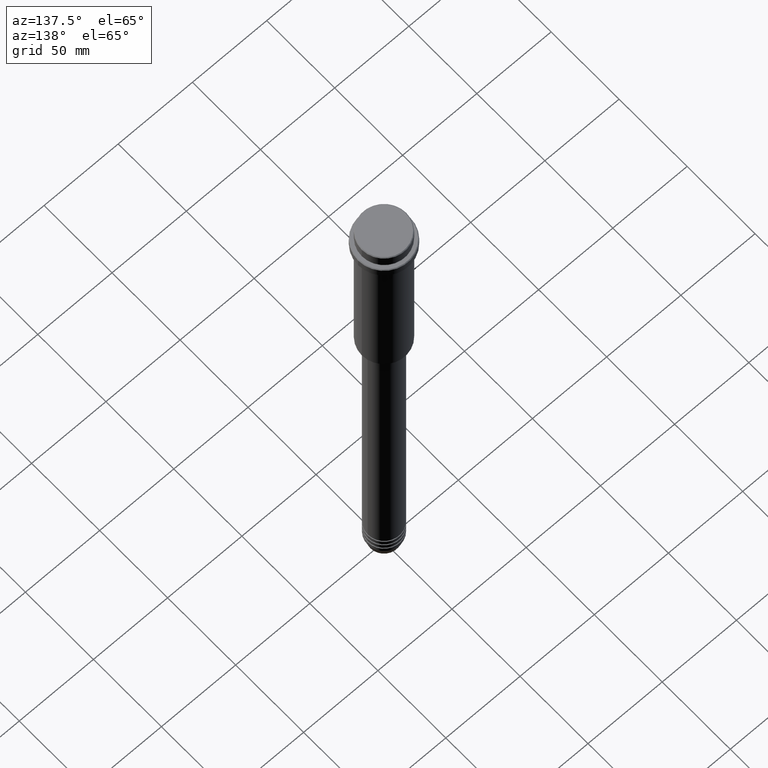
[diagram: clean part render]
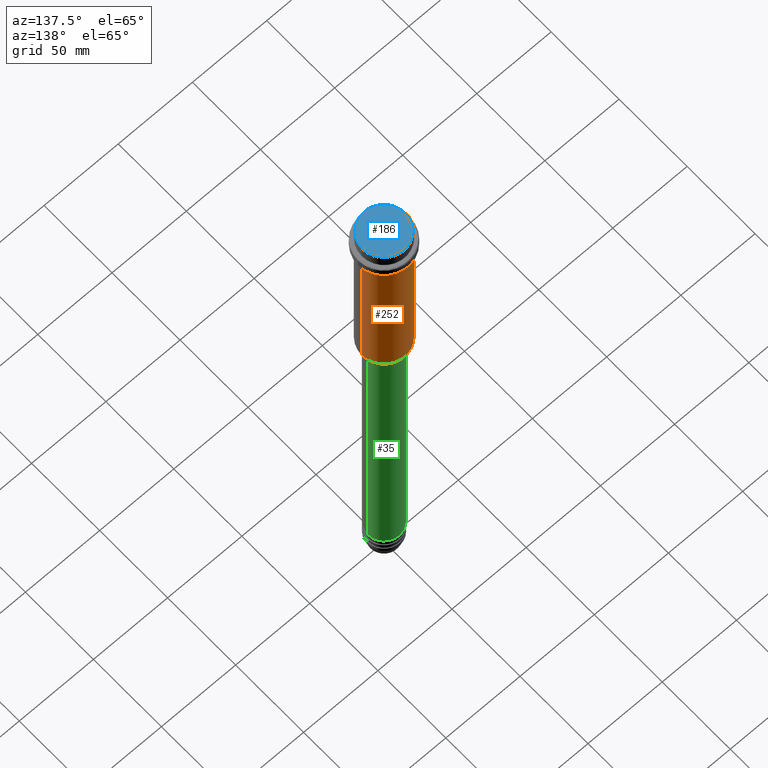
[diagram: same view with three faces highlighted in distinct colors, each labeled with its STEP entity id]
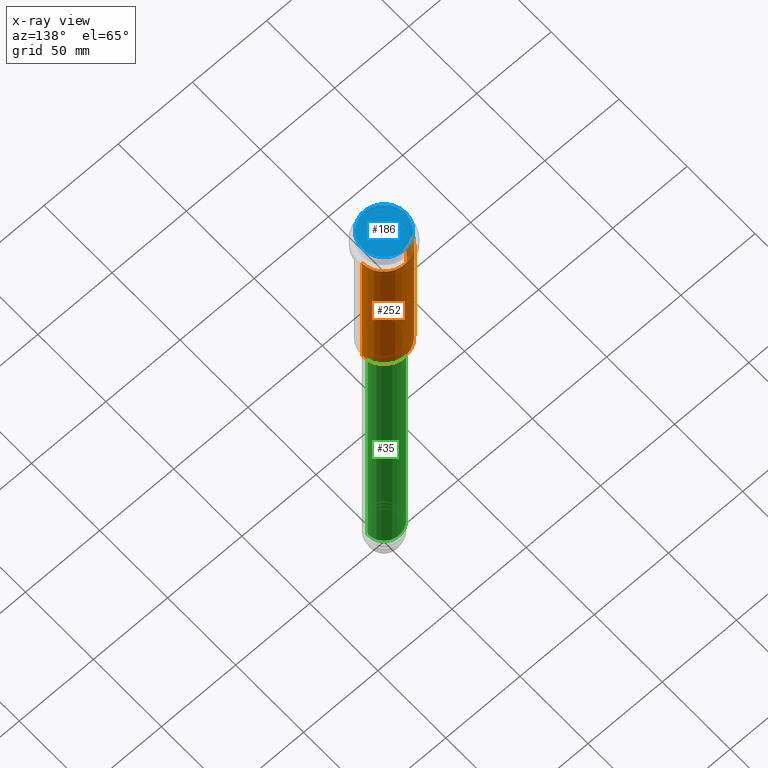
[diagram: x-ray of the same camera — body ghosted, the three highlighted faces saturated]
A machine part, auxiliary view with three faces highlighted in distinct colors.
The next image is the same camera in x-ray (body ghosted, the three faces saturated) — at least one of them is partly hidden behind the body in this view.
Their STEP definitions:

[orange] entity #252 — the highlighted cylindrical surface (edge-blend (fillet) strip) has radius 15 mm, axis along (-0, -0, 1).
#12 = AXIS2_PLACEMENT_3D ( 'NONE', #1238, #811, #824 ) ;
#33 = CARTESIAN_POINT ( 'NONE',  ( -15.00000000000000355, 1.836970198721029983E-15, -16.00000000000000000 ) ) ;
#107 = CARTESIAN_POINT ( 'NONE',  ( 15.00000000000000000, 0.000000000000000000, -124.4999999999999432 ) ) ;
#144 = CYLINDRICAL_SURFACE ( 'NONE', #772, 15.00000000000000000 ) ;
#168 = CARTESIAN_POINT ( 'NONE',  ( -15.00000000000000000, 1.836970198721029589E-15, -124.4999999999999432 ) ) ;
#205 = DIRECTION ( 'NONE',  ( -0.000000000000000000, -0.000000000000000000, 1.000000000000000000 ) ) ;
#219 = CARTESIAN_POINT ( 'NONE',  ( 0.000000000000000000, 0.000000000000000000, -124.4999999999999432 ) ) ;
#252 = ADVANCED_FACE ( 'NONE', ( #1256 ), #144, .T. ) ;
#314 = ORIENTED_EDGE ( 'NONE', *, *, #1406, .F. ) ;
#339 = VECTOR ( 'NONE', #1314, 1000.000000000000000 ) ;
#380 = AXIS2_PLACEMENT_3D ( 'NONE', #219, #205, #628 ) ;
#513 = CIRCLE ( 'NONE', #380, 15.00000000000000000 ) ;
#557 = VERTEX_POINT ( 'NONE', #168 ) ;
#588 = LINE ( 'NONE', #1039, #1097 ) ;
#626 = CIRCLE ( 'NONE', #12, 15.00000000000000178 ) ;
#628 = DIRECTION ( 'NONE',  ( -1.000000000000000000, 0.000000000000000000, 0.000000000000000000 ) ) ;
#632 = EDGE_CURVE ( 'NONE', #729, #825, #706, .T. ) ;
#706 = LINE ( 'NONE', #973, #339 ) ;
#729 = VERTEX_POINT ( 'NONE', #107 ) ;
#738 = DIRECTION ( 'NONE',  ( 1.000000000000000000, 0.000000000000000000, 0.000000000000000000 ) ) ;
#758 = ORIENTED_EDGE ( 'NONE', *, *, #979, .T. ) ;
#772 = AXIS2_PLACEMENT_3D ( 'NONE', #1170, #1266, #738 ) ;
#811 = DIRECTION ( 'NONE',  ( -0.000000000000000000, -0.000000000000000000, 1.000000000000000000 ) ) ;
#824 = DIRECTION ( 'NONE',  ( 1.000000000000000000, 0.000000000000000000, 0.000000000000000000 ) ) ;
#825 = VERTEX_POINT ( 'NONE', #889 ) ;
#860 = VERTEX_POINT ( 'NONE', #33 ) ;
#889 = CARTESIAN_POINT ( 'NONE',  ( 15.00000000000000178, 0.000000000000000000, -16.00000000000000000 ) ) ;
#973 = CARTESIAN_POINT ( 'NONE',  ( 15.00000000000000000, 0.000000000000000000, 0.000000000000000000 ) ) ;
#975 = EDGE_LOOP ( 'NONE', ( #1399, #758, #314, #994 ) ) ;
#979 = EDGE_CURVE ( 'NONE', #557, #860, #588, .T. ) ;
#994 = ORIENTED_EDGE ( 'NONE', *, *, #632, .F. ) ;
#1039 = CARTESIAN_POINT ( 'NONE',  ( -15.00000000000000000, 1.836970198721029589E-15, 0.000000000000000000 ) ) ;
#1097 = VECTOR ( 'NONE', #1248, 1000.000000000000000 ) ;
#1109 = EDGE_CURVE ( 'NONE', #729, #557, #513, .T. ) ;
#1170 = CARTESIAN_POINT ( 'NONE',  ( 0.000000000000000000, 0.000000000000000000, 0.000000000000000000 ) ) ;
#1238 = CARTESIAN_POINT ( 'NONE',  ( 0.000000000000000000, 0.000000000000000000, -16.00000000000000000 ) ) ;
#1248 = DIRECTION ( 'NONE',  ( -0.000000000000000000, -0.000000000000000000, 1.000000000000000000 ) ) ;
#1256 = FACE_OUTER_BOUND ( 'NONE', #975, .T. ) ;
#1266 = DIRECTION ( 'NONE',  ( -0.000000000000000000, -0.000000000000000000, 1.000000000000000000 ) ) ;
#1314 = DIRECTION ( 'NONE',  ( -0.000000000000000000, -0.000000000000000000, 1.000000000000000000 ) ) ;
#1399 = ORIENTED_EDGE ( 'NONE', *, *, #1109, .T. ) ;
#1406 = EDGE_CURVE ( 'NONE', #825, #860, #626, .T. ) ;

[blue] entity #186 — the highlighted planar face has unit normal (0, -0, 1).
#9 = DIRECTION ( 'NONE',  ( 1.000000000000000000, 0.000000000000000000, 0.000000000000000000 ) ) ;
#29 = CARTESIAN_POINT ( 'NONE',  ( 0.000000000000000000, 0.000000000000000000, 0.000000000000000000 ) ) ;
#51 = DIRECTION ( 'NONE',  ( 1.000000000000000000, 0.000000000000000000, 0.000000000000000000 ) ) ;
#93 = EDGE_LOOP ( 'NONE', ( #336, #224 ) ) ;
#130 = AXIS2_PLACEMENT_3D ( 'NONE', #1162, #1409, #1282 ) ;
#186 = ADVANCED_FACE ( 'NONE', ( #967 ), #734, .T. ) ;
#224 = ORIENTED_EDGE ( 'NONE', *, *, #895, .T. ) ;
#260 = AXIS2_PLACEMENT_3D ( 'NONE', #29, #1091, #9 ) ;
#330 = EDGE_CURVE ( 'NONE', #866, #1041, #578, .T. ) ;
#336 = ORIENTED_EDGE ( 'NONE', *, *, #330, .T. ) ;
#385 = CARTESIAN_POINT ( 'NONE',  ( 0.000000000000000000, 0.000000000000000000, 0.000000000000000000 ) ) ;
#457 = AXIS2_PLACEMENT_3D ( 'NONE', #385, #506, #51 ) ;
#463 = CARTESIAN_POINT ( 'NONE',  ( -14.50000000000006750, 0.000000000000000000, 0.000000000000000000 ) ) ;
#506 = DIRECTION ( 'NONE',  ( -0.000000000000000000, -0.000000000000000000, 1.000000000000000000 ) ) ;
#578 = CIRCLE ( 'NONE', #457, 14.50000000000006750 ) ;
#734 = PLANE ( 'NONE',  #130 ) ;
#866 = VERTEX_POINT ( 'NONE', #463 ) ;
#895 = EDGE_CURVE ( 'NONE', #1041, #866, #1119, .T. ) ;
#967 = FACE_OUTER_BOUND ( 'NONE', #93, .T. ) ;
#1041 = VERTEX_POINT ( 'NONE', #1380 ) ;
#1091 = DIRECTION ( 'NONE',  ( -0.000000000000000000, -0.000000000000000000, 1.000000000000000000 ) ) ;
#1119 = CIRCLE ( 'NONE', #260, 14.50000000000006750 ) ;
#1162 = CARTESIAN_POINT ( 'NONE',  ( 0.000000000000000000, 0.000000000000000000, 0.000000000000000000 ) ) ;
#1282 = DIRECTION ( 'NONE',  ( 1.000000000000000000, 0.000000000000000000, 0.000000000000000000 ) ) ;
#1380 = CARTESIAN_POINT ( 'NONE',  ( 14.50000000000006750, 1.806354028742349746E-15, 0.000000000000000000 ) ) ;
#1409 = DIRECTION ( 'NONE',  ( 0.000000000000000000, -0.000000000000000000, 1.000000000000000000 ) ) ;

[green] entity #35 — the highlighted cylindrical surface (edge-blend (fillet) strip) has radius 11 mm, axis along (-0, -0, 1).
#35 = ADVANCED_FACE ( 'NONE', ( #386 ), #154, .T. ) ;
#67 = LINE ( 'NONE', #1369, #1213 ) ;
#88 = VERTEX_POINT ( 'NONE', #1123 ) ;
#153 = LINE ( 'NONE', #1231, #360 ) ;
#154 = CYLINDRICAL_SURFACE ( 'NONE', #941, 11.00000000000000000 ) ;
#167 = DIRECTION ( 'NONE',  ( 1.000000000000000000, 0.000000000000000000, 0.000000000000000000 ) ) ;
#185 = ORIENTED_EDGE ( 'NONE', *, *, #1032, .F. ) ;
#189 = ORIENTED_EDGE ( 'NONE', *, *, #932, .F. ) ;
#191 = EDGE_LOOP ( 'NONE', ( #658, #1120, #189, #185 ) ) ;
#203 = CIRCLE ( 'NONE', #650, 11.00000000000000000 ) ;
#220 = CARTESIAN_POINT ( 'NONE',  ( 0.000000000000000000, 0.000000000000000000, 0.000000000000000000 ) ) ;
#222 = VERTEX_POINT ( 'NONE', #428 ) ;
#243 = EDGE_CURVE ( 'NONE', #1117, #1317, #153, .T. ) ;
#350 = DIRECTION ( 'NONE',  ( 1.000000000000000000, 0.000000000000000000, 0.000000000000000000 ) ) ;
#360 = VECTOR ( 'NONE', #1363, 1000.000000000000000 ) ;
#386 = FACE_OUTER_BOUND ( 'NONE', #191, .T. ) ;
#428 = CARTESIAN_POINT ( 'NONE',  ( 10.99999999999999822, 0.000000000000000000, -125.9999999999999147 ) ) ;
#454 = DIRECTION ( 'NONE',  ( 1.000000000000000000, 0.000000000000000000, 0.000000000000000000 ) ) ;
#458 = CARTESIAN_POINT ( 'NONE',  ( -10.99999999999999822, 1.347111479062088207E-15, -125.9999999999999147 ) ) ;
#625 = AXIS2_PLACEMENT_3D ( 'NONE', #839, #820, #167 ) ;
#637 = DIRECTION ( 'NONE',  ( -0.000000000000000000, -0.000000000000000000, 1.000000000000000000 ) ) ;
#650 = AXIS2_PLACEMENT_3D ( 'NONE', #806, #908, #454 ) ;
#658 = ORIENTED_EDGE ( 'NONE', *, *, #821, .T. ) ;
#806 = CARTESIAN_POINT ( 'NONE',  ( 0.000000000000000000, 0.000000000000000000, -340.9999999999998863 ) ) ;
#820 = DIRECTION ( 'NONE',  ( -0.000000000000000000, -0.000000000000000000, 1.000000000000000000 ) ) ;
#821 = EDGE_CURVE ( 'NONE', #88, #1117, #203, .T. ) ;
#839 = CARTESIAN_POINT ( 'NONE',  ( 0.000000000000000000, 0.000000000000000000, -125.9999999999999147 ) ) ;
#857 = CIRCLE ( 'NONE', #625, 10.99999999999999822 ) ;
#908 = DIRECTION ( 'NONE',  ( -0.000000000000000000, -0.000000000000000000, 1.000000000000000000 ) ) ;
#932 = EDGE_CURVE ( 'NONE', #222, #1317, #857, .T. ) ;
#941 = AXIS2_PLACEMENT_3D ( 'NONE', #220, #637, #350 ) ;
#1032 = EDGE_CURVE ( 'NONE', #88, #222, #67, .T. ) ;
#1117 = VERTEX_POINT ( 'NONE', #1165 ) ;
#1120 = ORIENTED_EDGE ( 'NONE', *, *, #243, .T. ) ;
#1123 = CARTESIAN_POINT ( 'NONE',  ( 11.00000000000000000, 0.000000000000000000, -340.9999999999998863 ) ) ;
#1165 = CARTESIAN_POINT ( 'NONE',  ( -11.00000000000000000, 1.347111479062088405E-15, -340.9999999999998863 ) ) ;
#1213 = VECTOR ( 'NONE', #1255, 1000.000000000000000 ) ;
#1231 = CARTESIAN_POINT ( 'NONE',  ( -11.00000000000000000, 1.347111479062088405E-15, 0.000000000000000000 ) ) ;
#1255 = DIRECTION ( 'NONE',  ( -0.000000000000000000, -0.000000000000000000, 1.000000000000000000 ) ) ;
#1317 = VERTEX_POINT ( 'NONE', #458 ) ;
#1363 = DIRECTION ( 'NONE',  ( -0.000000000000000000, -0.000000000000000000, 1.000000000000000000 ) ) ;
#1369 = CARTESIAN_POINT ( 'NONE',  ( 11.00000000000000000, 0.000000000000000000, 0.000000000000000000 ) ) ;